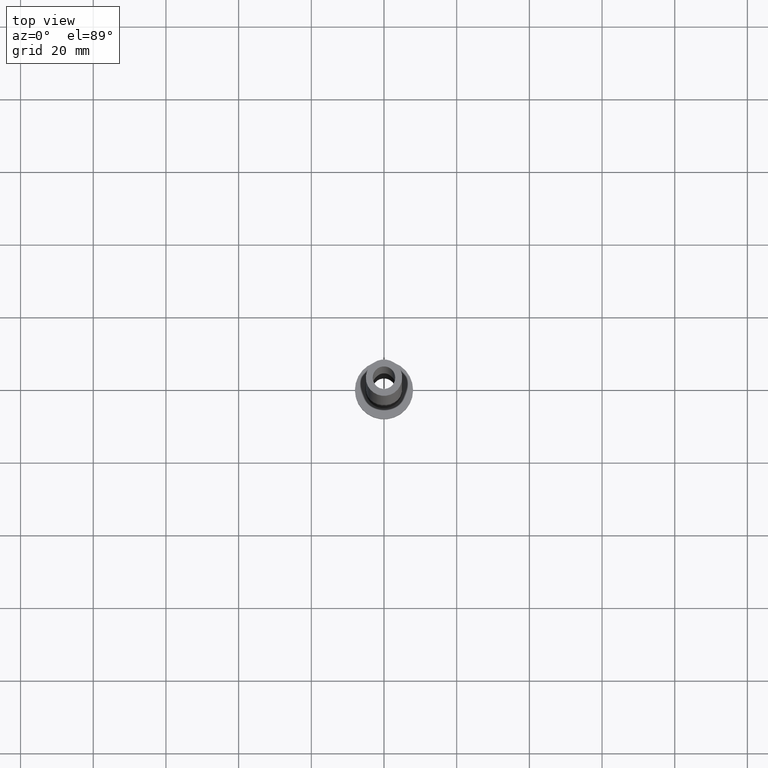
[diagram: clean part render]
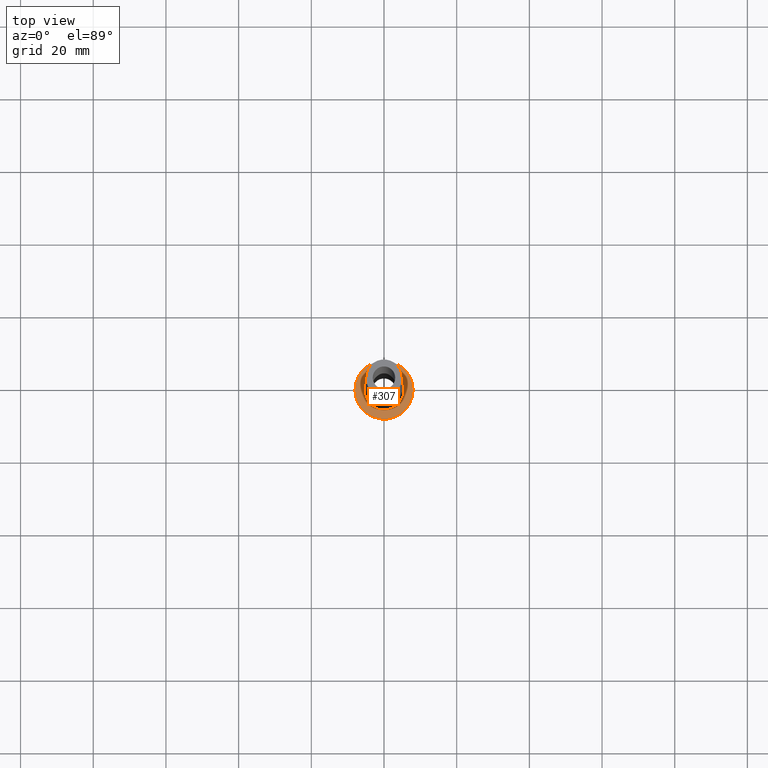
[diagram: same view with one face highlighted and labeled with its STEP entity id]
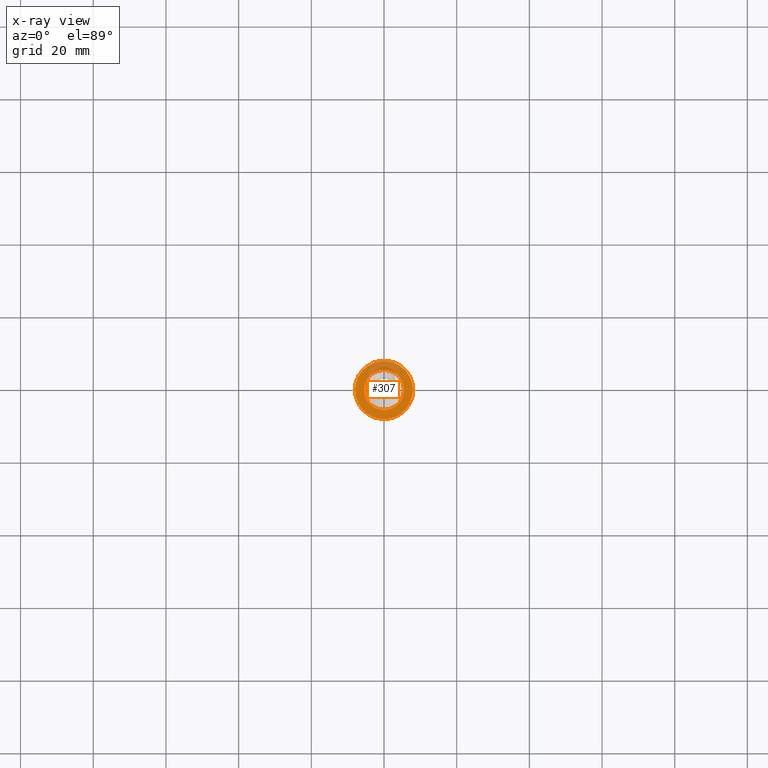
[diagram: x-ray of the same camera — body ghosted, the highlighted face saturated]
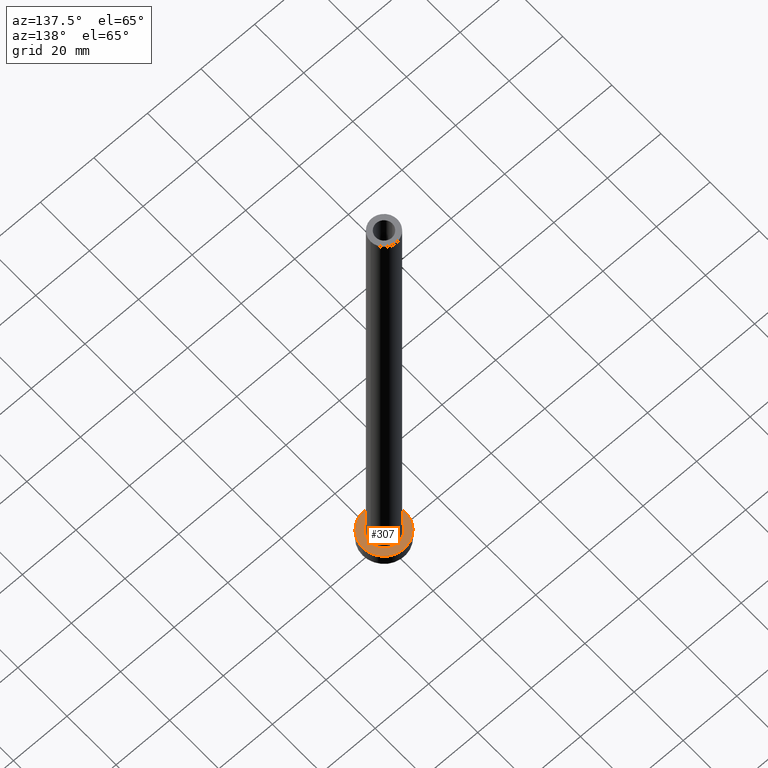
[diagram: same view with one face highlighted and labeled with its STEP entity id]
A machine part, top view. The second image highlights one B-rep face of the part: STEP entity #307.
The next image is the same camera in x-ray: the body ghosted, the highlighted face saturated — about 24% of this face is hidden behind the body in this view.
A second angle (auxiliary view) of the same face is appended — the face is thin or edge-on in the first view.
In plain terms, the highlighted planar face has unit normal (0, 0, 1).
Its self-contained STEP definition (entity closure, byte-faithful):
#9 = FACE_BOUND ( 'NONE', #322, .T. ) ;
#37 = DIRECTION ( 'NONE',  ( -0.000000000000000000, -0.000000000000000000, -1.000000000000000000 ) ) ;
#47 = ORIENTED_EDGE ( 'NONE', *, *, #362, .T. ) ;
#53 = VERTEX_POINT ( 'NONE', #374 ) ;
#66 = AXIS2_PLACEMENT_3D ( 'NONE', #68, #72, #240 ) ;
#67 = PLANE ( 'NONE',  #124 ) ;
#68 = CARTESIAN_POINT ( 'NONE',  ( 0.000000000000000000, 0.000000000000000000, 5.000000000000000000 ) ) ;
#72 = DIRECTION ( 'NONE',  ( 0.000000000000000000, 0.000000000000000000, 1.000000000000000000 ) ) ;
#95 = CIRCLE ( 'NONE', #320, 5.500000000000000000 ) ;
#103 = VERTEX_POINT ( 'NONE', #166 ) ;
#117 = EDGE_LOOP ( 'NONE', ( #151, #176 ) ) ;
#124 = AXIS2_PLACEMENT_3D ( 'NONE', #209, #314, #384 ) ;
#137 = DIRECTION ( 'NONE',  ( 0.000000000000000000, 0.000000000000000000, 1.000000000000000000 ) ) ;
#140 = CARTESIAN_POINT ( 'NONE',  ( 0.000000000000000000, 0.000000000000000000, 5.000000000000000000 ) ) ;
#148 = AXIS2_PLACEMENT_3D ( 'NONE', #140, #137, #461 ) ;
#151 = ORIENTED_EDGE ( 'NONE', *, *, #316, .T. ) ;
#166 = CARTESIAN_POINT ( 'NONE',  ( -5.500000000000000000, 6.735557395310442023E-16, 5.000000000000002665 ) ) ;
#176 = ORIENTED_EDGE ( 'NONE', *, *, #287, .T. ) ;
#177 = CARTESIAN_POINT ( 'NONE',  ( 8.000000000000000000, 9.797174393178825657E-16, 5.000000000000000000 ) ) ;
#185 = DIRECTION ( 'NONE',  ( -0.000000000000000000, -0.000000000000000000, -1.000000000000000000 ) ) ;
#188 = ORIENTED_EDGE ( 'NONE', *, *, #425, .T. ) ;
#194 = VERTEX_POINT ( 'NONE', #302 ) ;
#209 = CARTESIAN_POINT ( 'NONE',  ( 0.000000000000000000, 0.000000000000000000, 5.000000000000000000 ) ) ;
#240 = DIRECTION ( 'NONE',  ( 1.000000000000000000, 0.000000000000000000, 0.000000000000000000 ) ) ;
#241 = CIRCLE ( 'NONE', #148, 8.000000000000000000 ) ;
#250 = AXIS2_PLACEMENT_3D ( 'NONE', #409, #185, #332 ) ;
#287 = EDGE_CURVE ( 'NONE', #298, #194, #460, .T. ) ;
#298 = VERTEX_POINT ( 'NONE', #177 ) ;
#302 = CARTESIAN_POINT ( 'NONE',  ( -8.000000000000000000, 0.000000000000000000, 5.000000000000000000 ) ) ;
#307 = ADVANCED_FACE ( 'NONE', ( #9, #386 ), #67, .T. ) ;
#314 = DIRECTION ( 'NONE',  ( 0.000000000000000000, 0.000000000000000000, 1.000000000000000000 ) ) ;
#316 = EDGE_CURVE ( 'NONE', #194, #298, #241, .T. ) ;
#320 = AXIS2_PLACEMENT_3D ( 'NONE', #354, #37, #321 ) ;
#321 = DIRECTION ( 'NONE',  ( 1.000000000000000000, 0.000000000000000000, 0.000000000000000000 ) ) ;
#322 = EDGE_LOOP ( 'NONE', ( #47, #188 ) ) ;
#332 = DIRECTION ( 'NONE',  ( 1.000000000000000000, 0.000000000000000000, 0.000000000000000000 ) ) ;
#336 = CIRCLE ( 'NONE', #250, 5.500000000000000000 ) ;
#354 = CARTESIAN_POINT ( 'NONE',  ( 0.000000000000000000, 0.000000000000000000, 5.000000000000000000 ) ) ;
#362 = EDGE_CURVE ( 'NONE', #53, #103, #95, .T. ) ;
#374 = CARTESIAN_POINT ( 'NONE',  ( 5.500000000000000000, 0.000000000000000000, 5.000000000000002665 ) ) ;
#384 = DIRECTION ( 'NONE',  ( 1.000000000000000000, 0.000000000000000000, -0.000000000000000000 ) ) ;
#386 = FACE_OUTER_BOUND ( 'NONE', #117, .T. ) ;
#409 = CARTESIAN_POINT ( 'NONE',  ( 0.000000000000000000, 0.000000000000000000, 5.000000000000000000 ) ) ;
#425 = EDGE_CURVE ( 'NONE', #103, #53, #336, .T. ) ;
#460 = CIRCLE ( 'NONE', #66, 8.000000000000000000 ) ;
#461 = DIRECTION ( 'NONE',  ( 1.000000000000000000, 0.000000000000000000, 0.000000000000000000 ) ) ;